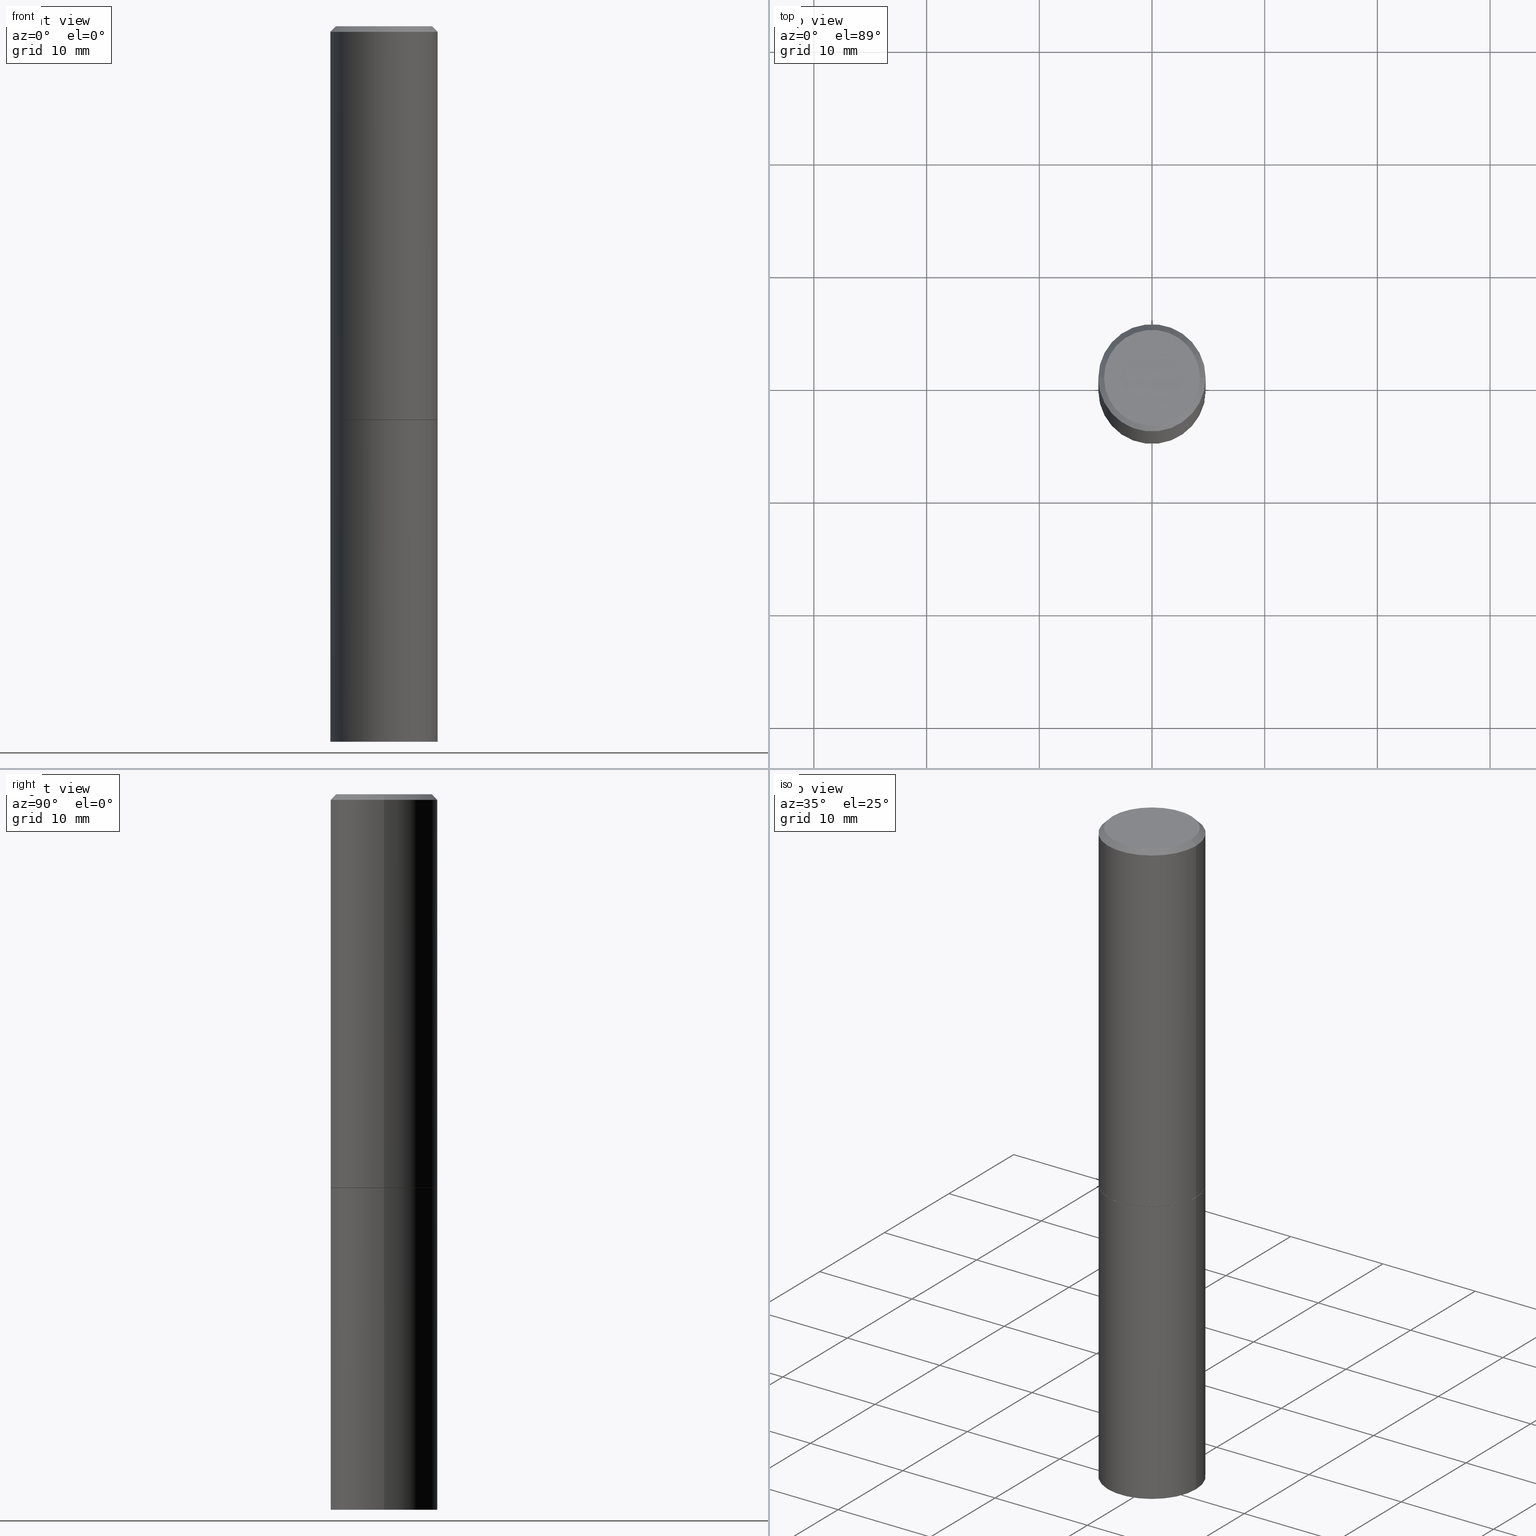
[diagram: canonical four-view strip — front | top / right | iso, engineering-drawing reading convention]
A machine part, canonical four-view strip (front | top / right | iso — engineering-drawing reading convention). The complete STEP part file that produces these views, byte-faithful:
ISO-10303-21;
HEADER;
FILE_DESCRIPTION (( 'STEP AP203' ),
    '1' );
FILE_NAME ('73028.STEP',
    '2024-02-29T07:08:34',
    ( '' ),
    ( '' ),
    'SwSTEP 2.0',
    'SolidWorks 2023',
    '' );
FILE_SCHEMA (( 'CONFIG_CONTROL_DESIGN' ));
ENDSEC;

DATA;
#1 = EDGE_CURVE ( 'NONE', #183, #12, #231, .T. ) ;
#2 = CIRCLE ( 'NONE', #206, 0.1875000000000000278 ) ;
#3 = CIRCLE ( 'NONE', #182, 0.1864999999999999714 ) ;
#4 = CC_DESIGN_PERSON_AND_ORGANIZATION_ASSIGNMENT ( #49, #163, ( #245 ) ) ;
#5 = AXIS2_PLACEMENT_3D ( 'NONE', #241, #40, #153 ) ;
#6 = CC_DESIGN_APPROVAL ( #356, ( #134 ) ) ;
#7 = DIRECTION ( 'NONE',  ( -2.438088387897960049E-29, 3.491481338843145188E-15, 1.000000000000000000 ) ) ;
#8 = CARTESIAN_POINT ( 'NONE',  ( 3.362519608504561700E-29, -4.800786840909324141E-15, -1.374999999999999778 ) ) ;
#9 = FACE_OUTER_BOUND ( 'NONE', #102, .T. ) ;
#10 = EDGE_CURVE ( 'NONE', #215, #41, #313, .T. ) ;
#11 = ORIENTED_EDGE ( 'NONE', *, *, #119, .F. ) ;
#12 = VERTEX_POINT ( 'NONE', #250 ) ;
#13 = DIRECTION ( 'NONE',  ( -1.000000000000000000, 6.982962677686265922E-15, -4.876176775795935793E-29 ) ) ;
#14 = ORGANIZATION ( 'UNSPECIFIED', 'UNSPECIFIED', '' ) ;
#15 = ORIENTED_EDGE ( 'NONE', *, *, #116, .F. ) ;
#16 = ORIENTED_EDGE ( 'NONE', *, *, #10, .F. ) ;
#17 = PRODUCT_DEFINITION ( 'UNKNOWN', '', #245, #145 ) ;
#18 = LINE ( 'NONE', #217, #166 ) ;
#19 = APPLICATION_PROTOCOL_DEFINITION ( 'international standard', 'config_control_design', 1994, #124 ) ;
#20 = CIRCLE ( 'NONE', #303, 0.1874999999999998335 ) ;
#21 = LOCAL_TIME ( 2, 8, 34.00000000000000000, #286 ) ;
#22 = DATE_AND_TIME ( #171, #150 ) ;
#23 = DIRECTION ( 'NONE',  ( -2.445468806185136597E-29, 3.491481338843145583E-15, 1.000000000000000000 ) ) ;
#24 = EDGE_CURVE ( 'NONE', #41, #12, #281, .T. ) ;
#25 = LINE ( 'NONE', #142, #299 ) ;
#26 = ORIENTED_EDGE ( 'NONE', *, *, #207, .T. ) ;
#27 = APPROVAL_DATE_TIME ( #358, #356 ) ;
#28 = CLOSED_SHELL ( 'NONE', ( #46, #275, #185, #225, #237, #108, #89, #324 ) ) ;
#29 = MECHANICAL_CONTEXT ( 'NONE', #105, 'mechanical' ) ;
#30 = APPROVAL ( #117, 'UNSPECIFIED' ) ;
#31 = PLANE ( 'NONE',  #265 ) ;
#32 = AXIS2_PLACEMENT_3D ( 'NONE', #191, #100, #69 ) ;
#33 = LOCAL_TIME ( 2, 8, 34.00000000000000000, #54 ) ;
#34 = PRODUCT ( '73028', '73028', '', ( #29 ) ) ;
#35 = ADVANCED_FACE ( 'NONE', ( #305 ), #31, .T. ) ;
#36 = UNCERTAINTY_MEASURE_WITH_UNIT (LENGTH_MEASURE( 1.000000000000000082E-05 ), #138, 'distance_accuracy_value', 'NONE');
#37 = PLANE ( 'NONE',  #276 ) ;
#38 = EDGE_CURVE ( 'NONE', #308, #12, #67, .T. ) ;
#39 = AXIS2_PLACEMENT_3D ( 'NONE', #338, #196, #312 ) ;
#40 = DIRECTION ( 'NONE',  ( -2.445468806185136597E-29, 3.491481338843145583E-15, 1.000000000000000000 ) ) ;
#41 = VERTEX_POINT ( 'NONE', #238 ) ;
#42 = DIRECTION ( 'NONE',  ( -2.445468806185136597E-29, 3.491481338843145583E-15, 1.000000000000000000 ) ) ;
#43 = CARTESIAN_POINT ( 'NONE',  ( 1.309305502066208732E-15, 0.1874999999999951983, -1.375000000000000444 ) ) ;
#44 = CARTESIAN_POINT ( 'NONE',  ( 0.000000000000000000, 0.000000000000000000, 0.000000000000000000 ) ) ;
#45 = AXIS2_PLACEMENT_3D ( 'NONE', #66, #180, #354 ) ;
#46 = ADVANCED_FACE ( 'NONE', ( #9 ), #316, .T. ) ;
#47 = CARTESIAN_POINT ( 'NONE',  ( 0.1864999999999999714, -6.103109380297813135E-15, -1.374999999999999778 ) ) ;
#48 = DIRECTION ( 'NONE',  ( -2.445468806185136597E-29, 3.491481338843145583E-15, 1.000000000000000000 ) ) ;
#49 = PERSON_AND_ORGANIZATION ( #98, #14 ) ;
#50 = CARTESIAN_POINT ( 'NONE',  ( 6.113672015462842613E-29, -8.728703347107864943E-15, -2.500000000000000000 ) ) ;
#51 = PERSON_AND_ORGANIZATION_ROLE ( 'design_owner' ) ;
#52 = VECTOR ( 'NONE', #74, 39.37007874015748143 ) ;
#53 = ORIENTED_EDGE ( 'NONE', *, *, #293, .T. ) ;
#54 = COORDINATED_UNIVERSAL_TIME_OFFSET ( 5, 0, .BEHIND. ) ;
#55 = CARTESIAN_POINT ( 'NONE',  ( -0.1864999999999999714, -3.470326184368516082E-15, -1.374999999999999778 ) ) ;
#56 = ORIENTED_EDGE ( 'NONE', *, *, #10, .T. ) ;
#57 = DIRECTION ( 'NONE',  ( 1.000000000000000000, 0.000000000000000000, 0.000000000000000000 ) ) ;
#58 = DIRECTION ( 'NONE',  ( 1.000000000000000000, -6.982962677686266711E-15, 4.876176775795936914E-29 ) ) ;
#59 = VERTEX_POINT ( 'NONE', #210 ) ;
#60 = SECURITY_CLASSIFICATION_LEVEL ( 'unclassified' ) ;
#61 = CC_DESIGN_PERSON_AND_ORGANIZATION_ASSIGNMENT ( #306, #165, ( #245 ) ) ;
#62 = AXIS2_PLACEMENT_3D ( 'NONE', #343, #341, #57 ) ;
#63 = DIRECTION ( 'NONE',  ( 1.000000000000000000, -6.982962677686266711E-15, 0.000000000000000000 ) ) ;
#64 = CC_DESIGN_PERSON_AND_ORGANIZATION_ASSIGNMENT ( #255, #140, ( #134 ) ) ;
#65 = CIRCLE ( 'NONE', #133, 0.1875000000000000278 ) ;
#66 = CARTESIAN_POINT ( 'NONE',  ( 1.169646248512448609E-15, 0.1674999999999998435, -5.848231242562263753E-16 ) ) ;
#67 = LINE ( 'NONE', #269, #141 ) ;
#68 = ORIENTED_EDGE ( 'NONE', *, *, #38, .T. ) ;
#69 = DIRECTION ( 'NONE',  ( 1.000000000000000000, -6.982962677686265922E-15, 4.876176775795935793E-29 ) ) ;
#70 = CYLINDRICAL_SURFACE ( 'NONE', #323, 0.1875000000000000278 ) ;
#71 = FACE_OUTER_BOUND ( 'NONE', #261, .T. ) ;
#72 = DIRECTION ( 'NONE',  ( -2.445468806185136597E-29, 3.491481338843145583E-15, 1.000000000000000000 ) ) ;
#73 = AXIS2_PLACEMENT_3D ( 'NONE', #175, #285, #362 ) ;
#74 = DIRECTION ( 'NONE',  ( -0.7071067811865466846, 2.468850131082247989E-15, -0.7071067811865483499 ) ) ;
#75 = EDGE_LOOP ( 'NONE', ( #201, #247, #129, #151 ) ) ;
#76 = DATE_AND_TIME ( #194, #21 ) ;
#77 = CARTESIAN_POINT ( 'NONE',  ( 0.1864999999999999714, -6.103109380297813135E-15, -1.374999999999999778 ) ) ;
#78 = ORIENTED_EDGE ( 'NONE', *, *, #147, .F. ) ;
#79 = DIRECTION ( 'NONE',  ( -2.445468806185136597E-29, 3.491481338843145583E-15, 1.000000000000000000 ) ) ;
#80 = AXIS2_PLACEMENT_3D ( 'NONE', #291, #23, #292 ) ;
#81 = ORIENTED_EDGE ( 'NONE', *, *, #267, .F. ) ;
#82 = APPROVAL_DATE_TIME ( #76, #30 ) ;
#83 = DIRECTION ( 'NONE',  ( -2.445468806185136597E-29, 3.491481338843145583E-15, 1.000000000000000000 ) ) ;
#84 = ORIENTED_EDGE ( 'NONE', *, *, #207, .F. ) ;
#85 = APPLICATION_PROTOCOL_DEFINITION ( 'international standard', 'config_control_design', 1994, #105 ) ;
#86 = DIRECTION ( 'NONE',  ( 0.7071067811866320607, -2.468850131083142557E-15, 0.7071067811864629737 ) ) ;
#87 = EDGE_CURVE ( 'NONE', #327, #271, #181, .T. ) ;
#88 = CIRCLE ( 'NONE', #149, 0.1674999999999998435 ) ;
#89 = ADVANCED_FACE ( 'NONE', ( #295 ), #37, .F. ) ;
#90 = CIRCLE ( 'NONE', #344, 0.1875000000000000278 ) ;
#91 = AXIS2_PLACEMENT_3D ( 'NONE', #348, #346, #213 ) ;
#92 = APPROVAL_PERSON_ORGANIZATION ( #365, #30, #337 ) ;
#93 = EDGE_LOOP ( 'NONE', ( #321, #162 ) ) ;
#94 = DIRECTION ( 'NONE',  ( 0.7071067811865466846, -7.319954787623252890E-15, -0.7071067811865483499 ) ) ;
#95 = EDGE_CURVE ( 'NONE', #183, #353, #146, .T. ) ;
#96 = ORIENTED_EDGE ( 'NONE', *, *, #95, .T. ) ;
#97 =( NAMED_UNIT ( * ) SI_UNIT ( $, .STERADIAN. ) SOLID_ANGLE_UNIT ( ) );
#98 = PERSON ( 'UNSPECIFIED', 'UNSPECIFIED', 'UNSPECIFIED', ('UNSPECIFIED'), ('UNSPECIFIED'), ('UNSPECIFIED') ) ;
#99 = ORIENTED_EDGE ( 'NONE', *, *, #116, .T. ) ;
#100 = DIRECTION ( 'NONE',  ( -2.445468806185136597E-29, 3.491481338843145583E-15, 1.000000000000000000 ) ) ;
#101 = CARTESIAN_POINT ( 'NONE',  ( -0.1864999999999999714, -3.475624638716737695E-15, -1.374999999999999778 ) ) ;
#102 = EDGE_LOOP ( 'NONE', ( #240, #26, #190, #81 ) ) ;
#103 = CARTESIAN_POINT ( 'NONE',  ( -0.1875000000000000278, -5.432477464458407482E-15, -1.375000000000000000 ) ) ;
#104 = CARTESIAN_POINT ( 'NONE',  ( 3.362519608504561700E-29, -4.800786840909324141E-15, -1.374999999999999778 ) ) ;
#105 = APPLICATION_CONTEXT ( 'configuration controlled 3d designs of mechanical parts and assemblies' ) ;
#106 = DIRECTION ( 'NONE',  ( -2.445468806185136597E-29, 3.491481338843145583E-15, 1.000000000000000000 ) ) ;
#107 = AXIS2_PLACEMENT_3D ( 'NONE', #198, #317, #63 ) ;
#108 = ADVANCED_FACE ( 'NONE', ( #272 ), #351, .T. ) ;
#109 = CALENDAR_DATE ( 2024, 29, 2 ) ;
#110 = EDGE_LOOP ( 'NONE', ( #96, #53, #78, #363 ) ) ;
#111 = CALENDAR_DATE ( 2024, 29, 2 ) ;
#112 = ORIENTED_EDGE ( 'NONE', *, *, #234, .T. ) ;
#113 = DIRECTION ( 'NONE',  ( -2.445468806185136877E-29, 3.491481338843145188E-15, 1.000000000000000000 ) ) ;
#114 = CARTESIAN_POINT ( 'NONE',  ( 0.1874999999999999167, -1.309305502066174219E-15, 9.142831454617375408E-30 ) ) ;
#115 = CALENDAR_DATE ( 2024, 29, 2 ) ;
#116 = EDGE_CURVE ( 'NONE', #59, #327, #65, .T. ) ;
#117 = APPROVAL_STATUS ( 'not_yet_approved' ) ;
#118 = CYLINDRICAL_SURFACE ( 'NONE', #158, 0.1874999999999999167 ) ;
#119 = EDGE_CURVE ( 'NONE', #336, #271, #90, .T. ) ;
#120 = AXIS2_PLACEMENT_3D ( 'NONE', #104, #106, #243 ) ;
#121 = FACE_OUTER_BOUND ( 'NONE', #93, .T. ) ;
#122 = DIRECTION ( 'NONE',  ( -1.000000000000000000, 6.982962677686265922E-15, -4.876176775795935793E-29 ) ) ;
#123 = AXIS2_PLACEMENT_3D ( 'NONE', #43, #157, #13 ) ;
#124 = APPLICATION_CONTEXT ( 'configuration controlled 3d designs of mechanical parts and assemblies' ) ;
#125 = ORIENTED_EDGE ( 'NONE', *, *, #156, .F. ) ;
#126 = EDGE_CURVE ( 'NONE', #340, #273, #200, .T. ) ;
#127 = DIRECTION ( 'NONE',  ( 1.000000000000000000, -6.982962677686265922E-15, 4.876176775795935793E-29 ) ) ;
#128 = ORIENTED_EDGE ( 'NONE', *, *, #249, .F. ) ;
#129 = ORIENTED_EDGE ( 'NONE', *, *, #234, .F. ) ;
#130 = CARTESIAN_POINT ( 'NONE',  ( 3.362519608504561700E-29, -4.800786840909324141E-15, -1.374999999999999778 ) ) ;
#131 = ADVANCED_FACE ( 'NONE', ( #216 ), #325, .T. ) ;
#132 = ORIENTED_EDGE ( 'NONE', *, *, #319, .F. ) ;
#133 = AXIS2_PLACEMENT_3D ( 'NONE', #50, #72, #161 ) ;
#134 = SECURITY_CLASSIFICATION ( '', '', #60 ) ;
#135 = DIRECTION ( 'NONE',  ( 2.445468806185136597E-29, -3.491481338843145583E-15, -1.000000000000000000 ) ) ;
#136 = ORIENTED_EDGE ( 'NONE', *, *, #267, .T. ) ;
#137 = DIRECTION ( 'NONE',  ( 1.000000000000000000, -6.982962677686269077E-15, 0.000000000000000000 ) ) ;
#138 =( CONVERSION_BASED_UNIT ( 'INCH', #184 ) LENGTH_UNIT ( ) NAMED_UNIT ( #212 ) );
#139 = EDGE_LOOP ( 'NONE', ( #128, #15 ) ) ;
#140 = PERSON_AND_ORGANIZATION_ROLE ( 'classification_officer' ) ;
#141 = VECTOR ( 'NONE', #94, 39.37007874015748143 ) ;
#142 = CARTESIAN_POINT ( 'NONE',  ( -0.1874999999999999167, 1.332267629550187257E-15, -9.223003294227943787E-30 ) ) ;
#143 = ORIENTED_EDGE ( 'NONE', *, *, #360, .F. ) ;
#144 = CONICAL_SURFACE ( 'NONE', #239, 0.1874999999999998335, 0.7853981633974471688 ) ;
#145 = DESIGN_CONTEXT ( 'detailed design', #124, 'design' ) ;
#146 = CIRCLE ( 'NONE', #5, 0.1875000000000000278 ) ;
#147 = EDGE_CURVE ( 'NONE', #12, #41, #20, .T. ) ;
#148 = CARTESIAN_POINT ( 'NONE',  ( 3.362519608504562260E-29, -4.800786840909324930E-15, -1.375000000000000000 ) ) ;
#149 = AXIS2_PLACEMENT_3D ( 'NONE', #364, #233, #315 ) ;
#150 = LOCAL_TIME ( 2, 8, 34.00000000000000000, #202 ) ;
#151 = ORIENTED_EDGE ( 'NONE', *, *, #87, .F. ) ;
#152 = DIRECTION ( 'NONE',  ( -2.445468806185136597E-29, 3.491481338843145583E-15, 1.000000000000000000 ) ) ;
#153 = DIRECTION ( 'NONE',  ( 1.000000000000000000, -6.982962677686266711E-15, 0.000000000000000000 ) ) ;
#154 = ORIENTED_EDGE ( 'NONE', *, *, #24, .T. ) ;
#155 = CARTESIAN_POINT ( 'NONE',  ( 4.890937612370283668E-31, -6.982962677686305168E-17, -0.02000000000000004205 ) ) ;
#156 = EDGE_CURVE ( 'NONE', #59, #336, #18, .T. ) ;
#157 = DIRECTION ( 'NONE',  ( 2.438088387897960049E-29, -3.491481338843145188E-15, -1.000000000000000000 ) ) ;
#158 = AXIS2_PLACEMENT_3D ( 'NONE', #342, #79, #264 ) ;
#159 = APPROVAL_PERSON_ORGANIZATION ( #288, #356, #232 ) ;
#160 = DIRECTION ( 'NONE',  ( -2.445468806185136597E-29, 3.491481338843145583E-15, 1.000000000000000000 ) ) ;
#161 = DIRECTION ( 'NONE',  ( 1.000000000000000000, -6.982962677686266711E-15, 0.000000000000000000 ) ) ;
#162 = ORIENTED_EDGE ( 'NONE', *, *, #257, .T. ) ;
#163 = PERSON_AND_ORGANIZATION_ROLE ( 'design_supplier' ) ;
#164 = CARTESIAN_POINT ( 'NONE',  ( 3.362519608504562260E-29, -4.800786840909324930E-15, -1.375000000000000000 ) ) ;
#165 = PERSON_AND_ORGANIZATION_ROLE ( 'creator' ) ;
#166 = VECTOR ( 'NONE', #227, 39.37007874015748143 ) ;
#167 = MANIFOLD_SOLID_BREP ( 'Body-Move/Copy2[1]', #253 ) ;
#168 = SHAPE_DEFINITION_REPRESENTATION ( #174, #218 ) ;
#169 = CYLINDRICAL_SURFACE ( 'NONE', #39, 0.1874999999999999167 ) ;
#170 = ORIENTED_EDGE ( 'NONE', *, *, #293, .F. ) ;
#171 = CALENDAR_DATE ( 2024, 29, 2 ) ;
#172 = PERSON_AND_ORGANIZATION ( #98, #14 ) ;
#173 = CC_DESIGN_APPROVAL ( #30, ( #17 ) ) ;
#174 = PRODUCT_DEFINITION_SHAPE ( 'NONE', 'NONE',  #17 ) ;
#175 = CARTESIAN_POINT ( 'NONE',  ( 4.890937612370283668E-31, -6.982962677686305168E-17, -0.02000000000000004205 ) ) ;
#176 = VECTOR ( 'NONE', #86, 39.37007874015748143 ) ;
#177 = ADVANCED_FACE ( 'NONE', ( #71 ), #188, .F. ) ;
#178 = PLANE ( 'NONE',  #45 ) ;
#179 = CARTESIAN_POINT ( 'NONE',  ( 0.1875000000000000278, -1.309305502066175008E-15, 9.142831454617381013E-30 ) ) ;
#180 = DIRECTION ( 'NONE',  ( 2.438088387897960049E-29, -3.491481338843145188E-15, -1.000000000000000000 ) ) ;
#181 = LINE ( 'NONE', #179, #263 ) ;
#182 = AXIS2_PLACEMENT_3D ( 'NONE', #8, #42, #187 ) ;
#183 = VERTEX_POINT ( 'NONE', #331 ) ;
#184 = LENGTH_MEASURE_WITH_UNIT ( LENGTH_MEASURE( 0.02539999999999999897 ), #328 );
#185 = ADVANCED_FACE ( 'NONE', ( #277 ), #144, .T. ) ;
#186 = ORIENTED_EDGE ( 'NONE', *, *, #1, .T. ) ;
#187 = DIRECTION ( 'NONE',  ( 1.000000000000000000, -6.982962677686269077E-15, 0.000000000000000000 ) ) ;
#188 = PLANE ( 'NONE',  #123 ) ;
#189 = DIRECTION ( 'NONE',  ( 1.000000000000000000, -6.982962677686266711E-15, 0.000000000000000000 ) ) ;
#190 = ORIENTED_EDGE ( 'NONE', *, *, #95, .F. ) ;
#191 = CARTESIAN_POINT ( 'NONE',  ( 0.000000000000000000, 0.000000000000000000, 0.000000000000000000 ) ) ;
#192 = CC_DESIGN_DATE_AND_TIME_ASSIGNMENT ( #314, #334, ( #17 ) ) ;
#193 = DIRECTION ( 'NONE',  ( 1.000000000000000000, -6.982962677686266711E-15, 0.000000000000000000 ) ) ;
#194 = CALENDAR_DATE ( 2024, 29, 2 ) ;
#195 = COORDINATED_UNIVERSAL_TIME_OFFSET ( 5, 0, .BEHIND. ) ;
#196 = DIRECTION ( 'NONE',  ( -2.445468806185136597E-29, 3.491481338843145583E-15, 1.000000000000000000 ) ) ;
#197 = APPROVAL_STATUS ( 'not_yet_approved' ) ;
#198 = CARTESIAN_POINT ( 'NONE',  ( 6.113672015462842613E-29, -8.728703347107864943E-15, -2.500000000000000000 ) ) ;
#199 = CC_DESIGN_PERSON_AND_ORGANIZATION_ASSIGNMENT ( #311, #204, ( #17 ) ) ;
#200 = CIRCLE ( 'NONE', #120, 0.1864999999999999714 ) ;
#201 = ORIENTED_EDGE ( 'NONE', *, *, #249, .T. ) ;
#202 = COORDINATED_UNIVERSAL_TIME_OFFSET ( 5, 0, .BEHIND. ) ;
#203 = ORIENTED_EDGE ( 'NONE', *, *, #339, .F. ) ;
#204 = PERSON_AND_ORGANIZATION_ROLE ( 'creator' ) ;
#205 = CARTESIAN_POINT ( 'NONE',  ( -0.1674999999999998435, 1.204561061900879864E-15, -8.301862719484106184E-30 ) ) ;
#206 = AXIS2_PLACEMENT_3D ( 'NONE', #220, #152, #189 ) ;
#207 = EDGE_CURVE ( 'NONE', #273, #353, #352, .T. ) ;
#208 = CARTESIAN_POINT ( 'NONE',  ( 1.309305502066236145E-15, 0.1874999999999912847, -2.500000000000000444 ) ) ;
#209 = APPROVAL ( #262, 'UNSPECIFIED' ) ;
#210 = CARTESIAN_POINT ( 'NONE',  ( -0.1875000000000000278, -5.432477464458407482E-15, -2.500000000000000000 ) ) ;
#211 = AXIS2_PLACEMENT_3D ( 'NONE', #230, #83, #58 ) ;
#212 = DIMENSIONAL_EXPONENTS ( 1.000000000000000000, 0.000000000000000000, 0.000000000000000000, 0.000000000000000000, 0.000000000000000000, 0.000000000000000000, 0.000000000000000000 ) ;
#213 = DIRECTION ( 'NONE',  ( 1.000000000000000000, -6.982962677686269077E-15, 0.000000000000000000 ) ) ;
#214 = ORIENTED_EDGE ( 'NONE', *, *, #360, .T. ) ;
#215 = VERTEX_POINT ( 'NONE', #205 ) ;
#216 = FACE_OUTER_BOUND ( 'NONE', #349, .T. ) ;
#217 = CARTESIAN_POINT ( 'NONE',  ( -0.1875000000000000278, 1.332267629550188046E-15, -9.223003294227947991E-30 ) ) ;
#218 = ADVANCED_BREP_SHAPE_REPRESENTATION ( '73028', ( #167, #296, #62 ), #266 ) ;
#219 = EDGE_LOOP ( 'NONE', ( #170, #310, #186, #222 ) ) ;
#220 = CARTESIAN_POINT ( 'NONE',  ( 3.360074139698377778E-29, -4.797295359570481134E-15, -1.373999999999999888 ) ) ;
#221 = DIRECTION ( 'NONE',  ( -0.7071067811866320607, 7.493145998870660238E-15, 0.7071067811864629737 ) ) ;
#222 = ORIENTED_EDGE ( 'NONE', *, *, #24, .F. ) ;
#223 = DIRECTION ( 'NONE',  ( -2.445468806185136597E-29, 3.491481338843145583E-15, 1.000000000000000000 ) ) ;
#224 = CARTESIAN_POINT ( 'NONE',  ( 4.890937612370283668E-31, -6.982962677686305168E-17, -0.02000000000000004205 ) ) ;
#225 = ADVANCED_FACE ( 'NONE', ( #287 ), #347, .T. ) ;
#226 = AXIS2_PLACEMENT_3D ( 'NONE', #130, #252, #137 ) ;
#227 = DIRECTION ( 'NONE',  ( -2.445468806185136877E-29, 3.491481338843145188E-15, 1.000000000000000000 ) ) ;
#228 = PERSON_AND_ORGANIZATION ( #98, #14 ) ;
#229 = FACE_OUTER_BOUND ( 'NONE', #110, .T. ) ;
#230 = CARTESIAN_POINT ( 'NONE',  ( 0.000000000000000000, 0.000000000000000000, 0.000000000000000000 ) ) ;
#231 = LINE ( 'NONE', #114, #290 ) ;
#232 = APPROVAL_ROLE ( '' ) ;
#233 = DIRECTION ( 'NONE',  ( -2.445468806185136597E-29, 3.491481338843145583E-15, 1.000000000000000000 ) ) ;
#234 = EDGE_CURVE ( 'NONE', #271, #336, #244, .T. ) ;
#235 = VECTOR ( 'NONE', #221, 39.37007874015748143 ) ;
#236 = APPROVAL_PERSON_ORGANIZATION ( #228, #209, #283 ) ;
#237 = ADVANCED_FACE ( 'NONE', ( #366 ), #118, .T. ) ;
#238 = CARTESIAN_POINT ( 'NONE',  ( -0.1874999999999998335, 1.239475875289310724E-15, -0.02000000000000004205 ) ) ;
#239 = AXIS2_PLACEMENT_3D ( 'NONE', #224, #135, #246 ) ;
#240 = ORIENTED_EDGE ( 'NONE', *, *, #126, .T. ) ;
#241 = CARTESIAN_POINT ( 'NONE',  ( 3.360074139698377778E-29, -4.797295359570481134E-15, -1.373999999999999888 ) ) ;
#242 = ORIENTED_EDGE ( 'NONE', *, *, #257, .F. ) ;
#243 = DIRECTION ( 'NONE',  ( 1.000000000000000000, -6.982962677686269077E-15, 0.000000000000000000 ) ) ;
#244 = CIRCLE ( 'NONE', #80, 0.1875000000000000278 ) ;
#245 = PRODUCT_DEFINITION_FORMATION_WITH_SPECIFIED_SOURCE ( 'ANY', '', #34, .NOT_KNOWN. ) ;
#246 = DIRECTION ( 'NONE',  ( -1.000000000000000000, 6.982962677686266711E-15, 0.000000000000000000 ) ) ;
#247 = ORIENTED_EDGE ( 'NONE', *, *, #156, .T. ) ;
#248 = CARTESIAN_POINT ( 'NONE',  ( 0.1875000000000000278, -1.003800884917403995E-14, -2.500000000000000000 ) ) ;
#249 = EDGE_CURVE ( 'NONE', #327, #59, #335, .T. ) ;
#250 = CARTESIAN_POINT ( 'NONE',  ( 0.1874999999999998335, -1.356173001359024283E-15, -0.02000000000000004205 ) ) ;
#251 =( NAMED_UNIT ( * ) PLANE_ANGLE_UNIT ( ) SI_UNIT ( $, .RADIAN. ) );
#252 = DIRECTION ( 'NONE',  ( -2.445468806185136597E-29, 3.491481338843145583E-15, 1.000000000000000000 ) ) ;
#253 = CLOSED_SHELL ( 'NONE', ( #332, #35, #177, #131 ) ) ;
#254 = DIRECTION ( 'NONE',  ( -2.445468806185136877E-29, 3.491481338843145188E-15, 1.000000000000000000 ) ) ;
#255 = PERSON_AND_ORGANIZATION ( #98, #14 ) ;
#256 = LINE ( 'NONE', #77, #176 ) ;
#257 = EDGE_CURVE ( 'NONE', #308, #215, #88, .T. ) ;
#258 = COORDINATED_UNIVERSAL_TIME_OFFSET ( 5, 0, .BEHIND. ) ;
#259 = CARTESIAN_POINT ( 'NONE',  ( 0.1674999999999998435, -1.252653207992877302E-15, 8.469775550109232378E-30 ) ) ;
#260 = DIRECTION ( 'NONE',  ( 2.438088387897960049E-29, -3.491481338843145188E-15, -1.000000000000000000 ) ) ;
#261 = EDGE_LOOP ( 'NONE', ( #112, #333 ) ) ;
#262 = APPROVAL_STATUS ( 'not_yet_approved' ) ;
#263 = VECTOR ( 'NONE', #318, 39.37007874015748143 ) ;
#264 = DIRECTION ( 'NONE',  ( 1.000000000000000000, -6.982962677686265922E-15, 4.876176775795935793E-29 ) ) ;
#265 = AXIS2_PLACEMENT_3D ( 'NONE', #208, #260, #122 ) ;
#266 =( GEOMETRIC_REPRESENTATION_CONTEXT ( 3 ) GLOBAL_UNCERTAINTY_ASSIGNED_CONTEXT ( ( #36 ) ) GLOBAL_UNIT_ASSIGNED_CONTEXT ( ( #138, #251, #97 ) ) REPRESENTATION_CONTEXT ( 'NONE', 'WORKASPACE' ) );
#267 = EDGE_CURVE ( 'NONE', #340, #183, #256, .T. ) ;
#268 = CC_DESIGN_PERSON_AND_ORGANIZATION_ASSIGNMENT ( #172, #51, ( #34 ) ) ;
#269 = CARTESIAN_POINT ( 'NONE',  ( 0.1874999999999998335, -1.356173001359024283E-15, -0.02000000000000004205 ) ) ;
#270 = LOCAL_TIME ( 2, 8, 34.00000000000000000, #195 ) ;
#271 = VERTEX_POINT ( 'NONE', #359 ) ;
#272 = FACE_OUTER_BOUND ( 'NONE', #300, .T. ) ;
#273 = VERTEX_POINT ( 'NONE', #55 ) ;
#274 = ORIENTED_EDGE ( 'NONE', *, *, #87, .T. ) ;
#275 = ADVANCED_FACE ( 'NONE', ( #229 ), #169, .T. ) ;
#276 = AXIS2_PLACEMENT_3D ( 'NONE', #148, #7, #127 ) ;
#277 = FACE_OUTER_BOUND ( 'NONE', #326, .T. ) ;
#278 = EDGE_LOOP ( 'NONE', ( #320, #132, #56, #154 ) ) ;
#279 = DIRECTION ( 'NONE',  ( 1.000000000000000000, -6.982962677686266711E-15, 0.000000000000000000 ) ) ;
#280 = DATE_AND_TIME ( #111, #309 ) ;
#281 = CIRCLE ( 'NONE', #294, 0.1874999999999998335 ) ;
#282 = CARTESIAN_POINT ( 'NONE',  ( -0.1874999999999998335, 1.239475875289310724E-15, -0.02000000000000004205 ) ) ;
#283 = APPROVAL_ROLE ( '' ) ;
#284 = CC_DESIGN_SECURITY_CLASSIFICATION ( #134, ( #245 ) ) ;
#285 = DIRECTION ( 'NONE',  ( 2.445468806185136597E-29, -3.491481338843145583E-15, -1.000000000000000000 ) ) ;
#286 = COORDINATED_UNIVERSAL_TIME_OFFSET ( 5, 0, .BEHIND. ) ;
#287 = FACE_OUTER_BOUND ( 'NONE', #278, .T. ) ;
#288 = PERSON_AND_ORGANIZATION ( #98, #14 ) ;
#289 = DATE_TIME_ROLE ( 'classification_date' ) ;
#290 = VECTOR ( 'NONE', #254, 39.37007874015748143 ) ;
#291 = CARTESIAN_POINT ( 'NONE',  ( 3.362519608504562260E-29, -4.800786840909324930E-15, -1.375000000000000000 ) ) ;
#292 = DIRECTION ( 'NONE',  ( 1.000000000000000000, -6.982962677686266711E-15, 0.000000000000000000 ) ) ;
#293 = EDGE_CURVE ( 'NONE', #353, #41, #25, .T. ) ;
#294 = AXIS2_PLACEMENT_3D ( 'NONE', #355, #330, #193 ) ;
#295 = FACE_OUTER_BOUND ( 'NONE', #301, .T. ) ;
#296 = MANIFOLD_SOLID_BREP ( 'Body-Move/Copy2[2]', #28 ) ;
#297 = PRODUCT_RELATED_PRODUCT_CATEGORY ( 'detail', '', ( #34 ) ) ;
#298 = FACE_OUTER_BOUND ( 'NONE', #75, .T. ) ;
#299 = VECTOR ( 'NONE', #113, 39.37007874015748143 ) ;
#300 = EDGE_LOOP ( 'NONE', ( #84, #214, #136, #203 ) ) ;
#301 = EDGE_LOOP ( 'NONE', ( #350, #143 ) ) ;
#302 = CC_DESIGN_DATE_AND_TIME_ASSIGNMENT ( #22, #289, ( #134 ) ) ;
#303 = AXIS2_PLACEMENT_3D ( 'NONE', #155, #48, #279 ) ;
#304 = DIRECTION ( 'NONE',  ( 1.000000000000000000, -6.982962677686265922E-15, 4.876176775795935793E-29 ) ) ;
#305 = FACE_OUTER_BOUND ( 'NONE', #139, .T. ) ;
#306 = PERSON_AND_ORGANIZATION ( #98, #14 ) ;
#307 = ORIENTED_EDGE ( 'NONE', *, *, #147, .T. ) ;
#308 = VERTEX_POINT ( 'NONE', #259 ) ;
#309 = LOCAL_TIME ( 2, 8, 34.00000000000000000, #258 ) ;
#310 = ORIENTED_EDGE ( 'NONE', *, *, #339, .T. ) ;
#311 = PERSON_AND_ORGANIZATION ( #98, #14 ) ;
#312 = DIRECTION ( 'NONE',  ( 1.000000000000000000, -6.982962677686265922E-15, 4.876176775795935793E-29 ) ) ;
#313 = LINE ( 'NONE', #282, #52 ) ;
#314 = DATE_AND_TIME ( #109, #270 ) ;
#315 = DIRECTION ( 'NONE',  ( 1.000000000000000000, -6.982962677686266711E-15, 4.876176775795936914E-29 ) ) ;
#316 = CONICAL_SURFACE ( 'NONE', #91, 0.1864999999999999714, 0.7853981633975678500 ) ;
#317 = DIRECTION ( 'NONE',  ( -2.445468806185136597E-29, 3.491481338843145583E-15, 1.000000000000000000 ) ) ;
#318 = DIRECTION ( 'NONE',  ( -2.445468806185136877E-29, 3.491481338843145188E-15, 1.000000000000000000 ) ) ;
#319 = EDGE_CURVE ( 'NONE', #215, #308, #357, .T. ) ;
#320 = ORIENTED_EDGE ( 'NONE', *, *, #38, .F. ) ;
#321 = ORIENTED_EDGE ( 'NONE', *, *, #319, .T. ) ;
#322 = CARTESIAN_POINT ( 'NONE',  ( -0.1874999999999999722, -1.101294863623483776E-15, -1.373999999999999888 ) ) ;
#323 = AXIS2_PLACEMENT_3D ( 'NONE', #44, #223, #304 ) ;
#324 = ADVANCED_FACE ( 'NONE', ( #121 ), #178, .F. ) ;
#325 = CYLINDRICAL_SURFACE ( 'NONE', #32, 0.1875000000000000278 ) ;
#326 = EDGE_LOOP ( 'NONE', ( #242, #68, #307, #16 ) ) ;
#327 = VERTEX_POINT ( 'NONE', #248 ) ;
#328 =( LENGTH_UNIT ( ) NAMED_UNIT ( * ) SI_UNIT ( $, .METRE. ) );
#329 = DIRECTION ( 'NONE',  ( 1.000000000000000000, -6.982962677686266711E-15, 0.000000000000000000 ) ) ;
#330 = DIRECTION ( 'NONE',  ( -2.445468806185136597E-29, 3.491481338843145583E-15, 1.000000000000000000 ) ) ;
#331 = CARTESIAN_POINT ( 'NONE',  ( 0.1875000000000000278, -6.106600861636656931E-15, -1.373999999999999888 ) ) ;
#332 = ADVANCED_FACE ( 'NONE', ( #298 ), #70, .T. ) ;
#333 = ORIENTED_EDGE ( 'NONE', *, *, #119, .T. ) ;
#334 = DATE_TIME_ROLE ( 'creation_date' ) ;
#335 = CIRCLE ( 'NONE', #107, 0.1875000000000000278 ) ;
#336 = VERTEX_POINT ( 'NONE', #103 ) ;
#337 = APPROVAL_ROLE ( '' ) ;
#338 = CARTESIAN_POINT ( 'NONE',  ( 0.000000000000000000, 0.000000000000000000, 0.000000000000000000 ) ) ;
#339 = EDGE_CURVE ( 'NONE', #353, #183, #2, .T. ) ;
#340 = VERTEX_POINT ( 'NONE', #47 ) ;
#341 = DIRECTION ( 'NONE',  ( 0.000000000000000000, 0.000000000000000000, 1.000000000000000000 ) ) ;
#342 = CARTESIAN_POINT ( 'NONE',  ( 0.000000000000000000, 0.000000000000000000, 0.000000000000000000 ) ) ;
#343 = CARTESIAN_POINT ( 'NONE',  ( 0.000000000000000000, 0.000000000000000000, 0.000000000000000000 ) ) ;
#344 = AXIS2_PLACEMENT_3D ( 'NONE', #164, #160, #329 ) ;
#345 = CC_DESIGN_APPROVAL ( #209, ( #245 ) ) ;
#346 = DIRECTION ( 'NONE',  ( -2.445468806185136597E-29, 3.491481338843145583E-15, 1.000000000000000000 ) ) ;
#347 = CONICAL_SURFACE ( 'NONE', #73, 0.1874999999999998335, 0.7853981633974471688 ) ;
#348 = CARTESIAN_POINT ( 'NONE',  ( 3.362519608504561700E-29, -4.800786840909324141E-15, -1.374999999999999778 ) ) ;
#349 = EDGE_LOOP ( 'NONE', ( #125, #99, #274, #11 ) ) ;
#350 = ORIENTED_EDGE ( 'NONE', *, *, #126, .F. ) ;
#351 = CONICAL_SURFACE ( 'NONE', #226, 0.1864999999999999714, 0.7853981633975678500 ) ;
#352 = LINE ( 'NONE', #101, #235 ) ;
#353 = VERTEX_POINT ( 'NONE', #322 ) ;
#354 = DIRECTION ( 'NONE',  ( -1.000000000000000000, 6.982962677686265922E-15, -4.876176775795935793E-29 ) ) ;
#355 = CARTESIAN_POINT ( 'NONE',  ( 4.890937612370283668E-31, -6.982962677686305168E-17, -0.02000000000000004205 ) ) ;
#356 = APPROVAL ( #197, 'UNSPECIFIED' ) ;
#357 = CIRCLE ( 'NONE', #211, 0.1674999999999998435 ) ;
#358 = DATE_AND_TIME ( #115, #33 ) ;
#359 = CARTESIAN_POINT ( 'NONE',  ( 0.1875000000000000278, -6.110092342975500727E-15, -1.375000000000000000 ) ) ;
#360 = EDGE_CURVE ( 'NONE', #273, #340, #3, .T. ) ;
#361 = APPROVAL_DATE_TIME ( #280, #209 ) ;
#362 = DIRECTION ( 'NONE',  ( -1.000000000000000000, 6.982962677686266711E-15, 0.000000000000000000 ) ) ;
#363 = ORIENTED_EDGE ( 'NONE', *, *, #1, .F. ) ;
#364 = CARTESIAN_POINT ( 'NONE',  ( 0.000000000000000000, 0.000000000000000000, 0.000000000000000000 ) ) ;
#365 = PERSON_AND_ORGANIZATION ( #98, #14 ) ;
#366 = FACE_OUTER_BOUND ( 'NONE', #219, .T. ) ;
ENDSEC;
END-ISO-10303-21;
